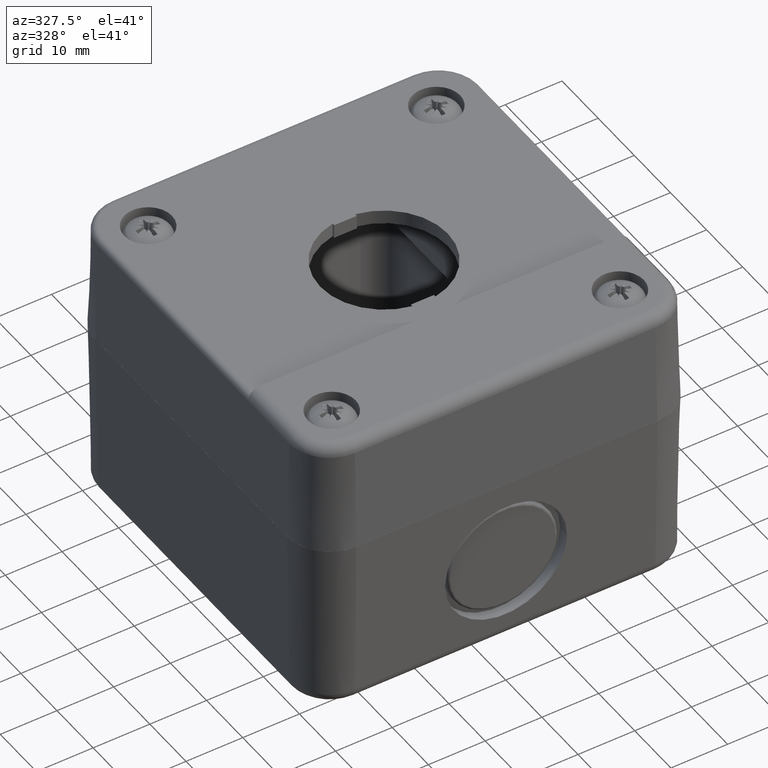
[diagram: clean part render]
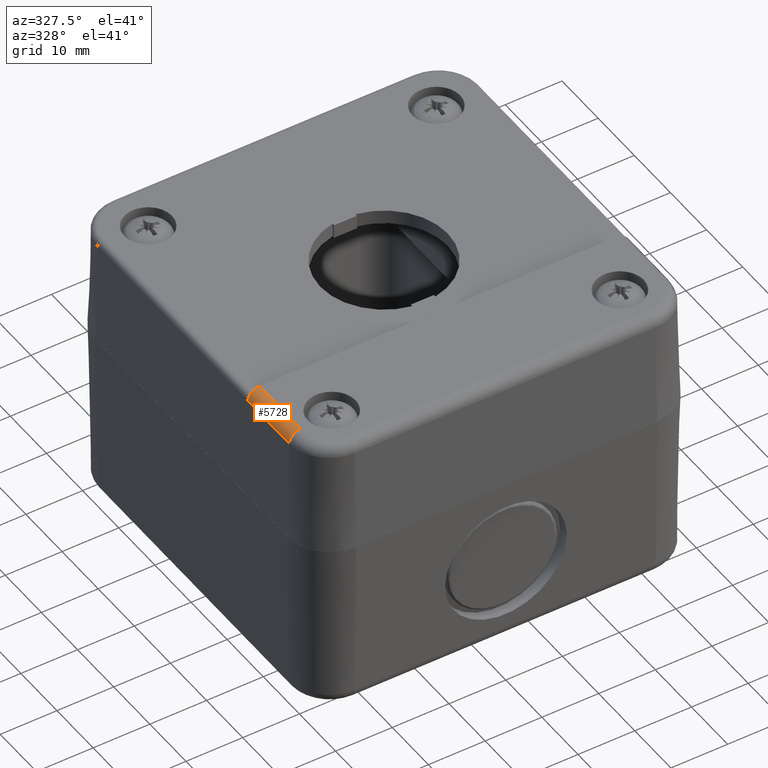
[diagram: same view with one face highlighted and labeled with its STEP entity id]
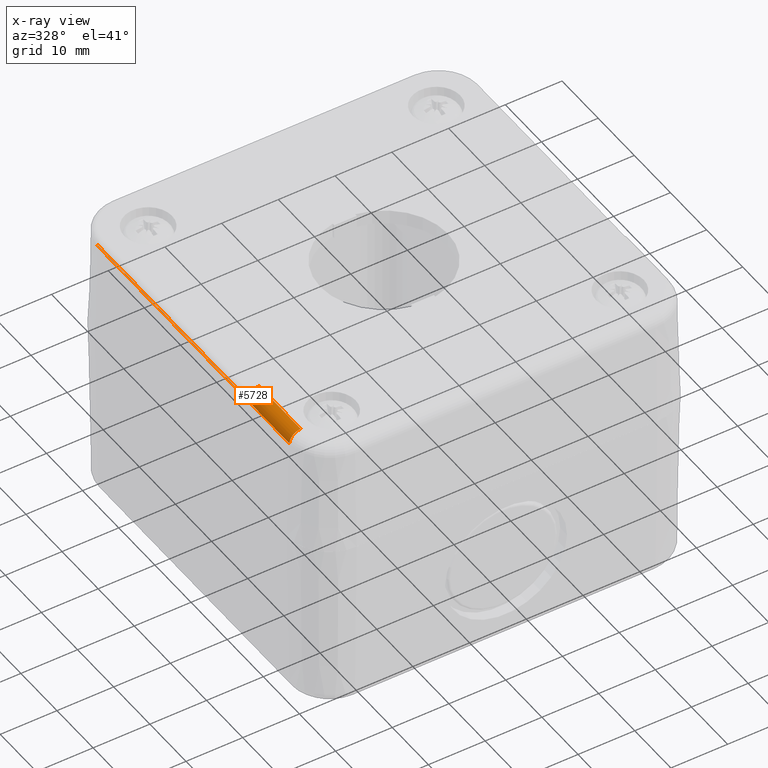
[diagram: x-ray of the same camera — body ghosted, the highlighted face saturated]
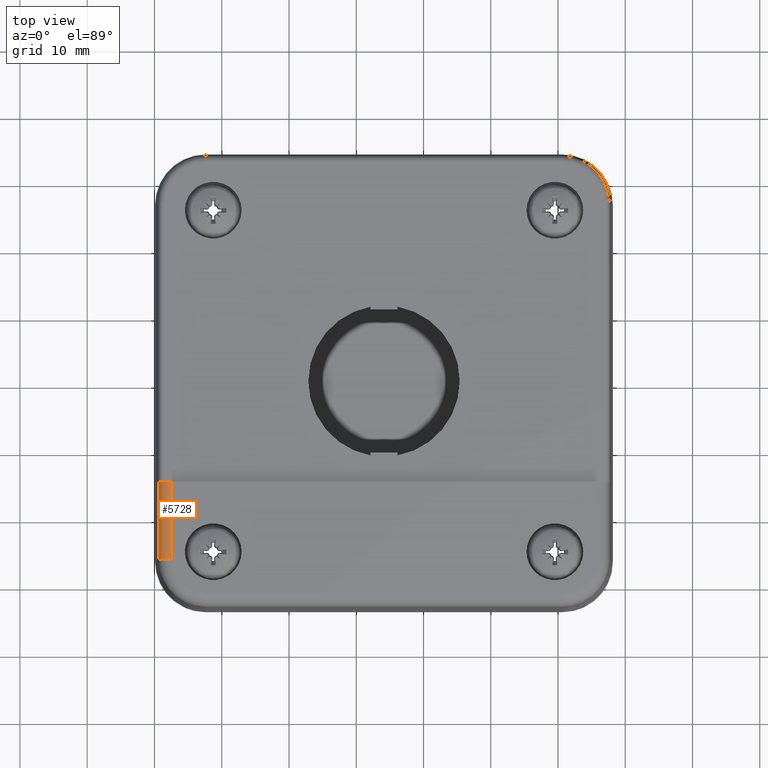
[diagram: same view with one face highlighted and labeled with its STEP entity id]
A machine part, auxiliary view. The second image highlights one B-rep face of the part: STEP entity #5728.
The next image is the same camera in x-ray: the body ghosted, the highlighted face saturated — about 0% of this face is hidden behind the body in this view.
A second angle (top view) of the same face is appended — the face is thin or edge-on in the first view.
In plain terms, the highlighted cylindrical surface (edge-blend (fillet) strip) has radius 2 mm, axis along (-0, -1, -0).
Its self-contained STEP definition (entity closure, byte-faithful):
#5515=CARTESIAN_POINT('',(-34.481307718329568,-28.853648537687743,1.873823051689221));
#5516=VERTEX_POINT('',#5515);
#5524=CARTESIAN_POINT('',(-34.475266716425025,-28.911241760835679,1.800000000000002));
#5525=VERTEX_POINT('',#5524);
#5526=CARTESIAN_POINT('',(-34.481307718329610,-28.853648537686542,1.873823051686962));
#5527=CARTESIAN_POINT('',(-34.481012519809724,-28.862430522260603,1.869153253120886));
#5528=CARTESIAN_POINT('',(-34.480671745545003,-28.870419487229849,1.864022167099426));
#5529=CARTESIAN_POINT('',(-34.479660892943386,-28.888557328271531,1.849772865808436));
#5530=CARTESIAN_POINT('',(-34.478926435717121,-28.897118380118378,1.840237494147914));
#5531=CARTESIAN_POINT('',(-34.477451863844955,-28.906956549579551,1.822939284506404));
#5532=CARTESIAN_POINT('',(-34.476747004600426,-28.909807941048520,1.815131632273745));
#5533=CARTESIAN_POINT('',(-34.475718817224205,-28.911107596920225,1.804537343202759));
#5534=CARTESIAN_POINT('',(-34.475494618386719,-28.911244937504382,1.802267595887789));
#5535=CARTESIAN_POINT('',(-34.475266716425025,-28.911241760835679,1.800000000000002));
#5536=B_SPLINE_CURVE_WITH_KNOTS('',3,(#5526,#5527,#5528,#5529,#5530,#5531,#5532,#5533,#5534,#5535),.UNSPECIFIED.,.F.,.U.,(4,2,2,2,4),(0.019093163557073,0.022160439318610,0.026971759699903,0.030392773630180,0.031324714232613),.UNSPECIFIED.);
#5537=EDGE_CURVE('',#5516,#5525,#5536,.T.);
#5619=CARTESIAN_POINT('',(-34.475266716425025,12.785100308944422,1.800000000000002));
#5620=VERTEX_POINT('',#5619);
#5637=CARTESIAN_POINT('',(-34.475266716425025,-28.911241760835679,1.800000000000002));
#5638=DIRECTION('',(0.0,1.0,0.0));
#5639=VECTOR('',#5638,41.696342069780101);
#5640=LINE('',#5637,#5639);
#5641=EDGE_CURVE('',#5525,#5620,#5640,.T.);
#5678=CARTESIAN_POINT('',(-32.485291842211787,-15.464899691055571,2.0));
#5679=DIRECTION('',(0.0,1.0,0.0));
#5680=DIRECTION('',(-0.697790459841680,0.0,-0.716301943424655));
#5681=AXIS2_PLACEMENT_3D('',#5678,#5679,#5680);
#5682=CYLINDRICAL_SURFACE('',#5681,2.0);
#5683=CARTESIAN_POINT('',(-32.485291842211787,12.785100308944422,0.0));
#5684=VERTEX_POINT('',#5683);
#5685=CARTESIAN_POINT('',(-32.485291842211787,12.785100308944422,2.0));
#5686=DIRECTION('',(0.0,1.0,0.0));
#5687=DIRECTION('',(-0.697790459841680,0.0,-0.716301943424655));
#5688=AXIS2_PLACEMENT_3D('',#5685,#5686,#5687);
#5689=CIRCLE('',#5688,2.0);
#5690=EDGE_CURVE('',#5684,#5620,#5689,.T.);
#5691=ORIENTED_EDGE('',*,*,#5690,.T.);
#5692=ORIENTED_EDGE('',*,*,#5641,.F.);
#5693=ORIENTED_EDGE('',*,*,#5537,.F.);
#5694=CARTESIAN_POINT('',(-34.484606492162904,-28.714899691055574,1.947646103384254));
#5695=VERTEX_POINT('',#5694);
#5696=CARTESIAN_POINT('',(-34.481307718329610,-28.853648537686542,1.873823051686963));
#5697=CARTESIAN_POINT('',(-34.482868394339370,-28.807219332520084,1.898511666640862));
#5698=CARTESIAN_POINT('',(-34.483964414427014,-28.760962816994123,1.923126143901677));
#5699=CARTESIAN_POINT('',(-34.484606492162904,-28.714899691055574,1.947646103384254));
#5700=B_SPLINE_CURVE_WITH_KNOTS('',3,(#5696,#5697,#5698,#5699),.UNSPECIFIED.,.F.,.U.,(4,4),(1.791651338586520,1.807307350285765),.UNSPECIFIED.);
#5701=EDGE_CURVE('',#5516,#5695,#5700,.T.);
#5702=ORIENTED_EDGE('',*,*,#5701,.T.);
#5703=CARTESIAN_POINT('',(-34.484606492162904,24.285100308944429,1.947646103384255));
#5704=VERTEX_POINT('',#5703);
#5705=CARTESIAN_POINT('',(-34.484606492162904,-28.714899691055574,1.947646103384254));
#5706=DIRECTION('',(0.0,1.0,0.0));
#5707=VECTOR('',#5706,53.0);
#5708=LINE('',#5705,#5707);
#5709=EDGE_CURVE('',#5695,#5704,#5708,.T.);
#5710=ORIENTED_EDGE('',*,*,#5709,.T.);
#5711=CARTESIAN_POINT('',(-32.485291842211787,24.285100308944433,0.0));
#5712=VERTEX_POINT('',#5711);
#5713=CARTESIAN_POINT('',(-32.485291842211787,24.285100308944433,2.000000000000002));
#5714=DIRECTION('',(0.0,1.0,0.0));
#5715=DIRECTION('',(0.0,0.0,-1.0));
#5716=AXIS2_PLACEMENT_3D('',#5713,#5714,#5715);
#5717=CIRCLE('',#5716,2.000000000000002);
#5718=EDGE_CURVE('',#5712,#5704,#5717,.T.);
#5719=ORIENTED_EDGE('',*,*,#5718,.F.);
#5720=CARTESIAN_POINT('',(-32.485291842211787,24.285100308944433,0.0));
#5721=DIRECTION('',(0.0,-1.0,0.0));
#5722=VECTOR('',#5721,11.500000000000011);
#5723=LINE('',#5720,#5722);
#5724=EDGE_CURVE('',#5712,#5684,#5723,.T.);
#5725=ORIENTED_EDGE('',*,*,#5724,.T.);
#5726=EDGE_LOOP('',(#5691,#5692,#5693,#5702,#5710,#5719,#5725));
#5727=FACE_OUTER_BOUND('',#5726,.T.);
#5728=ADVANCED_FACE('',(#5727),#5682,.T.);